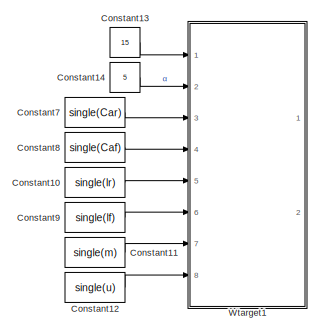
[diagram: root canvas - part 1/2, top right region]
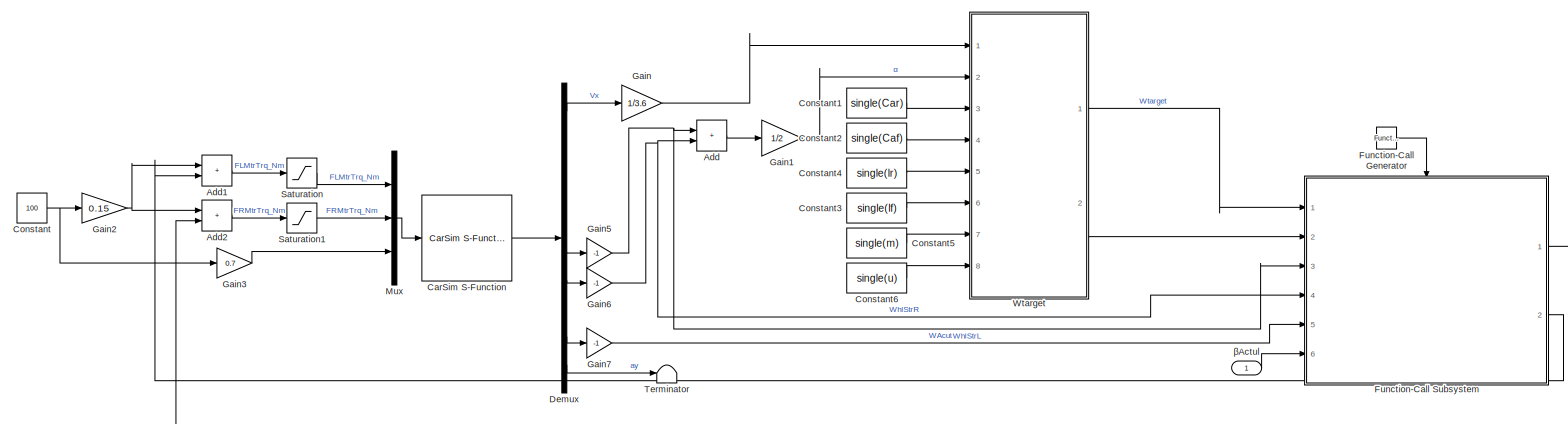
[diagram: root canvas - part 2/2, full width, middle band]
MODEL slx_0819341bcf43
KIND model
CONFIG AbsTol = auto
CONFIG EnableMultiTasking = off
CONFIG FixedStep = auto
CONFIG MaxStep = auto
CONFIG MinStep = auto
CONFIG RelTol = 1e-3
CONFIG SampleTimeConstraint = Unconstrained
CONFIG Solver = VariableStepAuto
CONFIG SolverName = VariableStepAuto
CONFIG StartTime = 0.0
CONFIG StopTime = 30
BLOCK [Sum] Add
  IconShape = rectangular
  Ports = [2, 1]
BLOCK [Sum] Add1
  IconShape = rectangular
  Ports = [2, 1]
BLOCK [Sum] Add2
  IconShape = rectangular
  Ports = [2, 1]
BLOCK [Reference] CarSim S-Function  REF=Solver_SF/CarSim S-Function
  Ports = [1, 1]
  Priority = 1
  SourceBlock = Solver_SF/CarSim S-Function
  SourceProductName = CarSim S-Function
  SourceType = Vehicle math model library
BLOCK [Constant] Constant
  Value = 100
BLOCK [Constant] Constant1
  Value = single(Car)
BLOCK [Constant] Constant10
  Commented = on
  Value = single(lr)
BLOCK [Constant] Constant11
  Commented = on
  Value = single(m)
BLOCK [Constant] Constant12
  Commented = on
  Value = single(u)
BLOCK [Constant] Constant13
  Commented = on
  Value = 15
BLOCK [Constant] Constant14
  Commented = on
  Value = 5
BLOCK [Constant] Constant2
  Value = single(Caf)
BLOCK [Constant] Constant3
  Value = single(lf)
BLOCK [Constant] Constant4
  Value = single(lr)
BLOCK [Constant] Constant5
  Value = single(m)
BLOCK [Constant] Constant6
  Value = single(u)
BLOCK [Constant] Constant7
  Commented = on
  Value = single(Car)
BLOCK [Constant] Constant8
  Commented = on
  Value = single(Caf)
BLOCK [Constant] Constant9
  Commented = on
  Value = single(lf)
BLOCK [Demux] Demux
  Outputs = 10
  Ports = [1, 10]
BLOCK [Reference] Function-Call Generator  REF=simulink/Ports &
Subsystems/Function-Call
Generator
  Ports = [0, 1]
  SourceBlock = simulink/Ports &\nSubsystems/Function-Call\nGenerator
  SourceType = Function-Call Generator
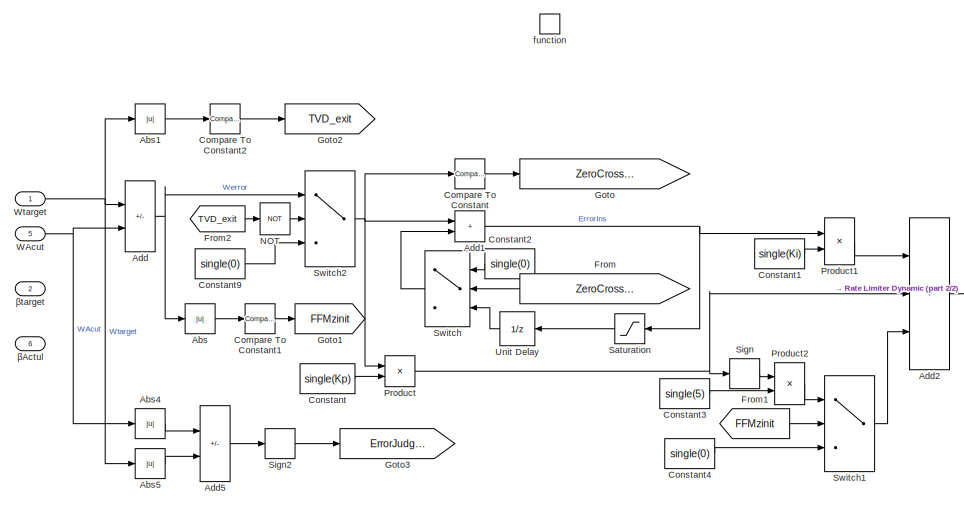
[diagram: Function-Call Subsystem - part 1/2, top left region]
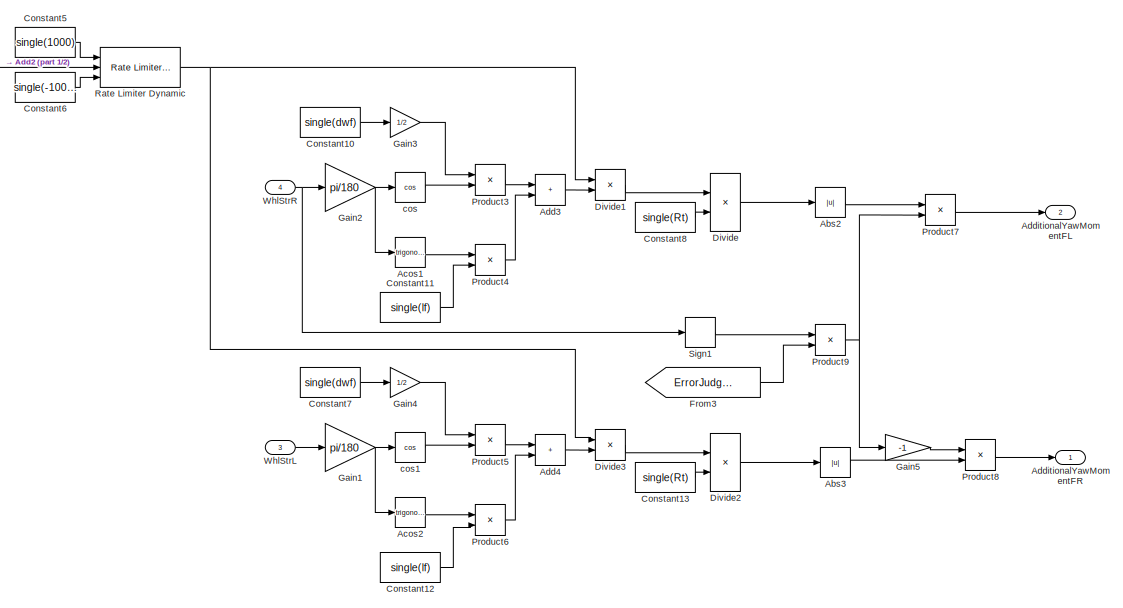
[diagram: Function-Call Subsystem - part 2/2, middle right region]
BLOCK [SubSystem] Function-Call Subsystem
  Ports = [6, 2, 0, 1]
  TreatAsAtomicUnit = on
BLOCK [Abs] Function-Call Subsystem/Abs
  SaturateOnIntegerOverflow = off
BLOCK [Abs] Function-Call Subsystem/Abs1
  SaturateOnIntegerOverflow = off
BLOCK [Abs] Function-Call Subsystem/Abs2
  SaturateOnIntegerOverflow = off
BLOCK [Abs] Function-Call Subsystem/Abs3
  SaturateOnIntegerOverflow = off
BLOCK [Abs] Function-Call Subsystem/Abs4
  SaturateOnIntegerOverflow = off
BLOCK [Abs] Function-Call Subsystem/Abs5
  SaturateOnIntegerOverflow = off
BLOCK [Trigonometry] Function-Call Subsystem/Acos1
  Ports = [1, 1]
BLOCK [Trigonometry] Function-Call Subsystem/Acos2
  Ports = [1, 1]
BLOCK [Sum] Function-Call Subsystem/Add
  IconShape = rectangular
  Inputs = +-
  Ports = [2, 1]
BLOCK [Sum] Function-Call Subsystem/Add1
  IconShape = rectangular
  Ports = [2, 1]
BLOCK [Sum] Function-Call Subsystem/Add2
  IconShape = rectangular
  Inputs = +++
  Ports = [3, 1]
BLOCK [Sum] Function-Call Subsystem/Add3
  IconShape = rectangular
  Ports = [2, 1]
BLOCK [Sum] Function-Call Subsystem/Add4
  IconShape = rectangular
  Ports = [2, 1]
BLOCK [Sum] Function-Call Subsystem/Add5
  IconShape = rectangular
  Inputs = -+
  Ports = [2, 1]
BLOCK [Outport] Function-Call Subsystem/AdditionalYawMomentFL
  Port = 2
BLOCK [Outport] Function-Call Subsystem/AdditionalYawMomentFR
BLOCK [Reference] Function-Call Subsystem/Compare To Constant  REF=simulink/Logic and Bit
Operations/Compare
To Constant
  Ports = [1, 1]
  SourceBlock = simulink/Logic and Bit\nOperations/Compare\nTo Constant
  SourceType = Compare To Constant
BLOCK [Reference] Function-Call Subsystem/Compare To Constant1  REF=simulink/Logic and Bit
Operations/Compare
To Constant
  Ports = [1, 1]
  SourceBlock = simulink/Logic and Bit\nOperations/Compare\nTo Constant
  SourceType = Compare To Constant
BLOCK [Reference] Function-Call Subsystem/Compare To Constant2  REF=simulink/Logic and Bit
Operations/Compare
To Constant
  Ports = [1, 1]
  SourceBlock = simulink/Logic and Bit\nOperations/Compare\nTo Constant
  SourceType = Compare To Constant
BLOCK [Constant] Function-Call Subsystem/Constant
  Value = single(Kp)
BLOCK [Constant] Function-Call Subsystem/Constant1
  Value = single(Ki)
BLOCK [Constant] Function-Call Subsystem/Constant10
  Value = single(dwf)
BLOCK [Constant] Function-Call Subsystem/Constant11
  Value = single(lf)
BLOCK [Constant] Function-Call Subsystem/Constant12
  Value = single(lf)
BLOCK [Constant] Function-Call Subsystem/Constant13
  Value = single(Rt)
BLOCK [Constant] Function-Call Subsystem/Constant2
  Value = single(0)
BLOCK [Constant] Function-Call Subsystem/Constant3
  Value = single(5)
BLOCK [Constant] Function-Call Subsystem/Constant4
  Value = single(0)
BLOCK [Constant] Function-Call Subsystem/Constant5
  Value = single(1000)
BLOCK [Constant] Function-Call Subsystem/Constant6
  Value = single(-1000)
BLOCK [Constant] Function-Call Subsystem/Constant7
  Value = single(dwf)
BLOCK [Constant] Function-Call Subsystem/Constant8
  Value = single(Rt)
BLOCK [Constant] Function-Call Subsystem/Constant9
  Value = single(0)
BLOCK [Product] Function-Call Subsystem/Divide
  Inputs = **
  Ports = [2, 1]
BLOCK [Product] Function-Call Subsystem/Divide1
  Inputs = */
  Ports = [2, 1]
BLOCK [Product] Function-Call Subsystem/Divide2
  Inputs = **
  Ports = [2, 1]
BLOCK [Product] Function-Call Subsystem/Divide3
  Inputs = */
  Ports = [2, 1]
BLOCK [From] Function-Call Subsystem/From
  GotoTag = ZeroCrossingDetection
BLOCK [From] Function-Call Subsystem/From1
  GotoTag = FFMzinit
BLOCK [From] Function-Call Subsystem/From2
  GotoTag = TVD_exit
BLOCK [From] Function-Call Subsystem/From3
  GotoTag = ErrorJudgment
BLOCK [Gain] Function-Call Subsystem/Gain1
  Gain = pi/180
BLOCK [Gain] Function-Call Subsystem/Gain2
  Gain = pi/180
BLOCK [Gain] Function-Call Subsystem/Gain3
  Gain = 1/2
BLOCK [Gain] Function-Call Subsystem/Gain4
  Gain = 1/2
BLOCK [Gain] Function-Call Subsystem/Gain5
  Gain = -1
BLOCK [Goto] Function-Call Subsystem/Goto
  GotoTag = ZeroCrossingDetection
BLOCK [Goto] Function-Call Subsystem/Goto1
  GotoTag = FFMzinit
BLOCK [Goto] Function-Call Subsystem/Goto2
  GotoTag = TVD_exit
BLOCK [Goto] Function-Call Subsystem/Goto3
  GotoTag = ErrorJudgment
BLOCK [Logic] Function-Call Subsystem/NOT
  AllPortsSameDT = off
  Operator = NOT
  OutDataTypeStr = boolean
  Ports = [1, 1]
BLOCK [Product] Function-Call Subsystem/Product
  Ports = [2, 1]
BLOCK [Product] Function-Call Subsystem/Product1
  Ports = [2, 1]
BLOCK [Product] Function-Call Subsystem/Product2
  Ports = [2, 1]
BLOCK [Product] Function-Call Subsystem/Product3
  Ports = [2, 1]
BLOCK [Product] Function-Call Subsystem/Product4
  Ports = [2, 1]
BLOCK [Product] Function-Call Subsystem/Product5
  Ports = [2, 1]
BLOCK [Product] Function-Call Subsystem/Product6
  Ports = [2, 1]
BLOCK [Product] Function-Call Subsystem/Product7
  Ports = [2, 1]
BLOCK [Product] Function-Call Subsystem/Product8
  Ports = [2, 1]
BLOCK [Product] Function-Call Subsystem/Product9
  Ports = [2, 1]
BLOCK [Reference] Function-Call Subsystem/Rate Limiter Dynamic  REF=simulink/Discontinuities/Rate Limiter
Dynamic
  Ports = [3, 1]
  SourceBlock = simulink/Discontinuities/Rate Limiter\nDynamic
  SourceType = Rate Limiter Dynamic
BLOCK [Saturate] Function-Call Subsystem/Saturation
  LowerLimit = -10
  UpperLimit = 10
BLOCK [Signum] Function-Call Subsystem/Sign
BLOCK [Signum] Function-Call Subsystem/Sign1
BLOCK [Signum] Function-Call Subsystem/Sign2
BLOCK [Switch] Function-Call Subsystem/Switch
  Criteria = u2 ~= 0
  InputSameDT = off
  SaturateOnIntegerOverflow = off
BLOCK [Switch] Function-Call Subsystem/Switch1
  Criteria = u2 ~= 0
  InputSameDT = off
  SaturateOnIntegerOverflow = off
BLOCK [Switch] Function-Call Subsystem/Switch2
  Criteria = u2 ~= 0
  InputSameDT = off
  SaturateOnIntegerOverflow = off
BLOCK [UnitDelay] Function-Call Subsystem/Unit Delay
  HasFrameUpgradeWarning = on
  SampleTime = -1
BLOCK [Inport] Function-Call Subsystem/WAcut
  Port = 5
BLOCK [Inport] Function-Call Subsystem/WhlStrL
  Port = 3
BLOCK [Inport] Function-Call Subsystem/WhlStrR
  Port = 4
BLOCK [Inport] Function-Call Subsystem/Wtarget
BLOCK [Trigonometry] Function-Call Subsystem/cos
  Operator = cos
  Ports = [1, 1]
BLOCK [Trigonometry] Function-Call Subsystem/cos1
  Operator = cos
  Ports = [1, 1]
BLOCK [TriggerPort] Function-Call Subsystem/function
  Ports = []
  StatesWhenEnabling = held
  TriggerType = function-call
  VariantControl = (inherit)
BLOCK [Inport] Function-Call Subsystem/βActul
  Port = 6
BLOCK [Inport] Function-Call Subsystem/βtarget
  Port = 2
BLOCK [Gain] Gain
  Gain = 1/3.6
BLOCK [Gain] Gain1
  Gain = 1/2
BLOCK [Gain] Gain2
  Gain = 0.15
BLOCK [Gain] Gain3
  Gain = 0.7
BLOCK [Gain] Gain5
  Gain = -1
BLOCK [Gain] Gain6
  Gain = -1
BLOCK [Gain] Gain7
  Gain = -1
BLOCK [Mux] Mux
  DisplayOption = bar
  Inputs = 3
  Ports = [3, 1]
BLOCK [Saturate] Saturation
  LowerLimit = 0
  UpperLimit = inf
BLOCK [Saturate] Saturation1
  LowerLimit = 0
  UpperLimit = inf
BLOCK [Terminator] Terminator
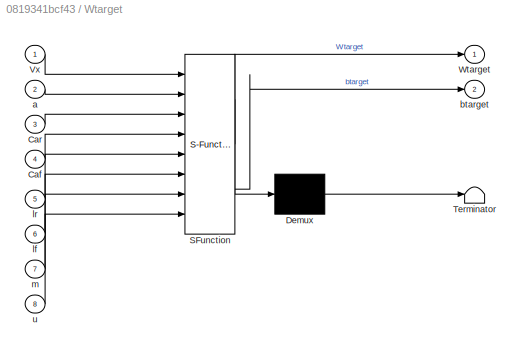
BLOCK [SubSystem] Wtarget
  ErrorFcn = Stateflow.Translate.translate
  PermitHierarchicalResolution = ExplicitOnly
  Ports = [8, 2]
  SFBlockType = MATLAB Function
  TreatAsAtomicUnit = on
BLOCK [Demux] Wtarget/ Demux 
  Outputs = 1
  Ports = [1, 1]
BLOCK [S-Function] Wtarget/ SFunction 
  EnableBusSupport = on
  FunctionName = sf_sfun
  PortCounts = [8 3]
  Ports = [8, 3]
  SFcnIsStateOwnerBlock = off
  SFunctionDeploymentMode = off
  Tag = Stateflow S-Function DTC2018B 2
BLOCK [Terminator] Wtarget/ Terminator 
BLOCK [Inport] Wtarget/Caf
  Port = 4
BLOCK [Inport] Wtarget/Car
  Port = 3
BLOCK [Inport] Wtarget/Vx
BLOCK [Outport] Wtarget/Wtarget
BLOCK [Inport] Wtarget/a
  Port = 2
BLOCK [Outport] Wtarget/btarget
  Port = 2
BLOCK [Inport] Wtarget/lf
  Port = 6
BLOCK [Inport] Wtarget/lr
  Port = 5
BLOCK [Inport] Wtarget/m
  Port = 7
BLOCK [Inport] Wtarget/u
  Port = 8
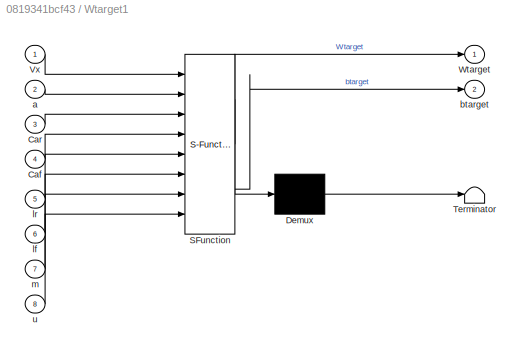
BLOCK [SubSystem] Wtarget1
  Commented = on
  ErrorFcn = Stateflow.Translate.translate
  PermitHierarchicalResolution = ExplicitOnly
  Ports = [8, 2]
  SFBlockType = MATLAB Function
  TreatAsAtomicUnit = on
BLOCK [Demux] Wtarget1/ Demux 
  Outputs = 1
  Ports = [1, 1]
BLOCK [S-Function] Wtarget1/ SFunction 
  EnableBusSupport = on
  FunctionName = sf_sfun
  PortCounts = [8 3]
  Ports = [8, 3]
  SFcnIsStateOwnerBlock = off
  SFunctionDeploymentMode = off
  Tag = Stateflow S-Function 1
BLOCK [Terminator] Wtarget1/ Terminator 
BLOCK [Inport] Wtarget1/Caf
  Port = 4
BLOCK [Inport] Wtarget1/Car
  Port = 3
BLOCK [Inport] Wtarget1/Vx
BLOCK [Outport] Wtarget1/Wtarget
BLOCK [Inport] Wtarget1/a
  Port = 2
BLOCK [Outport] Wtarget1/btarget
  Port = 2
BLOCK [Inport] Wtarget1/lf
  Port = 6
BLOCK [Inport] Wtarget1/lr
  Port = 5
BLOCK [Inport] Wtarget1/m
  Port = 7
BLOCK [Inport] Wtarget1/u
  Port = 8
BLOCK [Inport] βActul
LINE Add1:1 -> Saturation:1
LINE Add2:1 -> Saturation1:1
LINE Add:1 -> Gain1:1
LINE CarSim S-Function:1 -> Demux:1
LINE Constant10:1 -> Wtarget1:5
LINE Constant11:1 -> Wtarget1:7
LINE Constant12:1 -> Wtarget1:8
LINE Constant13:1 -> Wtarget1:1
LINE Constant14:1 -> Wtarget1:2
LINE Constant1:1 -> Wtarget:3
LINE Constant2:1 -> Wtarget:4
LINE Constant3:1 -> Wtarget:6
LINE Constant4:1 -> Wtarget:5
LINE Constant5:1 -> Wtarget:7
LINE Constant6:1 -> Wtarget:8
LINE Constant7:1 -> Wtarget1:3
LINE Constant8:1 -> Wtarget1:4
LINE Constant9:1 -> Wtarget1:6
NET Constant:1 -> Gain2:1, Gain3:1
LINE Demux:1 -> Gain:1
LINE Demux:10 -> Terminator:1
LINE Demux:6 -> Gain5:1
LINE Demux:7 -> Gain6:1
LINE Demux:9 -> Gain7:1
LINE Function-Call Generator:1 -> Function-Call Subsystem:trigger
LINE Function-Call Subsystem/Abs1:1 -> Function-Call Subsystem/Compare To Constant2:1
LINE Function-Call Subsystem/Abs2:1 -> Function-Call Subsystem/Product7:1
LINE Function-Call Subsystem/Abs3:1 -> Function-Call Subsystem/Product8:2
LINE Function-Call Subsystem/Abs4:1 -> Function-Call Subsystem/Add5:1
LINE Function-Call Subsystem/Abs5:1 -> Function-Call Subsystem/Add5:2
LINE Function-Call Subsystem/Abs:1 -> Function-Call Subsystem/Compare To Constant1:1
LINE Function-Call Subsystem/Acos1:1 -> Function-Call Subsystem/Product4:1
LINE Function-Call Subsystem/Acos2:1 -> Function-Call Subsystem/Product6:1
NET Function-Call Subsystem/Add1:1 -> Function-Call Subsystem/Product1:1, Function-Call Subsystem/Saturation:1
LINE Function-Call Subsystem/Add2:1 -> Function-Call Subsystem/Rate Limiter Dynamic:2
LINE Function-Call Subsystem/Add3:1 -> Function-Call Subsystem/Divide1:2
LINE Function-Call Subsystem/Add4:1 -> Function-Call Subsystem/Divide3:2
LINE Function-Call Subsystem/Add5:1 -> Function-Call Subsystem/Sign2:1
NET Function-Call Subsystem/Add:1 -> Function-Call Subsystem/Abs:1, Function-Call Subsystem/Switch2:1
LINE Function-Call Subsystem/Compare To Constant1:1 -> Function-Call Subsystem/Goto1:1
LINE Function-Call Subsystem/Compare To Constant2:1 -> Function-Call Subsystem/Goto2:1
LINE Function-Call Subsystem/Compare To Constant:1 -> Function-Call Subsystem/Goto:1
LINE Function-Call Subsystem/Constant10:1 -> Function-Call Subsystem/Gain3:1
LINE Function-Call Subsystem/Constant11:1 -> Function-Call Subsystem/Product4:2
LINE Function-Call Subsystem/Constant12:1 -> Function-Call Subsystem/Product6:2
LINE Function-Call Subsystem/Constant13:1 -> Function-Call Subsystem/Divide2:2
LINE Function-Call Subsystem/Constant1:1 -> Function-Call Subsystem/Product1:2
LINE Function-Call Subsystem/Constant2:1 -> Function-Call Subsystem/Switch:1
LINE Function-Call Subsystem/Constant3:1 -> Function-Call Subsystem/Product2:2
LINE Function-Call Subsystem/Constant4:1 -> Function-Call Subsystem/Switch1:3
LINE Function-Call Subsystem/Constant5:1 -> Function-Call Subsystem/Rate Limiter Dynamic:1
LINE Function-Call Subsystem/Constant6:1 -> Function-Call Subsystem/Rate Limiter Dynamic:3
LINE Function-Call Subsystem/Constant7:1 -> Function-Call Subsystem/Gain4:1
LINE Function-Call Subsystem/Constant8:1 -> Function-Call Subsystem/Divide:2
LINE Function-Call Subsystem/Constant9:1 -> Function-Call Subsystem/Switch2:3
LINE Function-Call Subsystem/Constant:1 -> Function-Call Subsystem/Product:2
LINE Function-Call Subsystem/Divide1:1 -> Function-Call Subsystem/Divide:1
LINE Function-Call Subsystem/Divide2:1 -> Function-Call Subsystem/Abs3:1
LINE Function-Call Subsystem/Divide3:1 -> Function-Call Subsystem/Divide2:1
LINE Function-Call Subsystem/Divide:1 -> Function-Call Subsystem/Abs2:1
LINE Function-Call Subsystem/From1:1 -> Function-Call Subsystem/Switch1:2
LINE Function-Call Subsystem/From2:1 -> Function-Call Subsystem/NOT:1
LINE Function-Call Subsystem/From3:1 -> Function-Call Subsystem/Product9:2
LINE Function-Call Subsystem/From:1 -> Function-Call Subsystem/Switch:2
NET Function-Call Subsystem/Gain1:1 -> Function-Call Subsystem/Acos2:1, Function-Call Subsystem/cos1:1
NET Function-Call Subsystem/Gain2:1 -> Function-Call Subsystem/Acos1:1, Function-Call Subsystem/cos:1
LINE Function-Call Subsystem/Gain3:1 -> Function-Call Subsystem/Product3:1
LINE Function-Call Subsystem/Gain4:1 -> Function-Call Subsystem/Product5:1
LINE Function-Call Subsystem/Gain5:1 -> Function-Call Subsystem/Product8:1
LINE Function-Call Subsystem/NOT:1 -> Function-Call Subsystem/Switch2:2
LINE Function-Call Subsystem/Product1:1 -> Function-Call Subsystem/Add2:1
LINE Function-Call Subsystem/Product2:1 -> Function-Call Subsystem/Switch1:1
LINE Function-Call Subsystem/Product3:1 -> Function-Call Subsystem/Add3:1
LINE Function-Call Subsystem/Product4:1 -> Function-Call Subsystem/Add3:2
LINE Function-Call Subsystem/Product5:1 -> Function-Call Subsystem/Add4:1
LINE Function-Call Subsystem/Product6:1 -> Function-Call Subsystem/Add4:2
LINE Function-Call Subsystem/Product7:1 -> Function-Call Subsystem/AdditionalYawMomentFL:1
LINE Function-Call Subsystem/Product8:1 -> Function-Call Subsystem/AdditionalYawMomentFR:1
NET Function-Call Subsystem/Product9:1 -> Function-Call Subsystem/Gain5:1, Function-Call Subsystem/Product7:2
NET Function-Call Subsystem/Product:1 -> Function-Call Subsystem/Add2:2, Function-Call Subsystem/Sign:1
NET Function-Call Subsystem/Rate Limiter Dynamic:1 -> Function-Call Subsystem/Divide1:1, Function-Call Subsystem/Divide3:1
LINE Function-Call Subsystem/Saturation:1 -> Function-Call Subsystem/Unit Delay:1
LINE Function-Call Subsystem/Sign1:1 -> Function-Call Subsystem/Product9:1
LINE Function-Call Subsystem/Sign2:1 -> Function-Call Subsystem/Goto3:1
LINE Function-Call Subsystem/Sign:1 -> Function-Call Subsystem/Product2:1
LINE Function-Call Subsystem/Switch1:1 -> Function-Call Subsystem/Add2:3
NET Function-Call Subsystem/Switch2:1 -> Function-Call Subsystem/Add1:1, Function-Call Subsystem/Compare To Constant:1, Function-Call Subsystem/Product:1
LINE Function-Call Subsystem/Switch:1 -> Function-Call Subsystem/Add1:2
LINE Function-Call Subsystem/Unit Delay:1 -> Function-Call Subsystem/Switch:3
NET Function-Call Subsystem/WAcut:1 -> Function-Call Subsystem/Abs4:1, Function-Call Subsystem/Add:2
LINE Function-Call Subsystem/WhlStrL:1 -> Function-Call Subsystem/Gain1:1
NET Function-Call Subsystem/WhlStrR:1 -> Function-Call Subsystem/Gain2:1, Function-Call Subsystem/Sign1:1
NET Function-Call Subsystem/Wtarget:1 -> Function-Call Subsystem/Abs1:1, Function-Call Subsystem/Abs5:1, Function-Call Subsystem/Add:1
LINE Function-Call Subsystem/cos1:1 -> Function-Call Subsystem/Product5:2
LINE Function-Call Subsystem/cos:1 -> Function-Call Subsystem/Product3:2
LINE Function-Call Subsystem:1 -> Add2:2
LINE Function-Call Subsystem:2 -> Add1:2
LINE Gain1:1 -> Wtarget:2
NET Gain2:1 -> Add1:1, Add2:1
LINE Gain3:1 -> Mux:3
NET Gain5:1 -> Add:1, Function-Call Subsystem:3
NET Gain6:1 -> Add:2, Function-Call Subsystem:4
LINE Gain7:1 -> Function-Call Subsystem:5
LINE Gain:1 -> Wtarget:1
LINE Mux:1 -> CarSim S-Function:1
LINE Saturation1:1 -> Mux:2
LINE Saturation:1 -> Mux:1
LINE Wtarget:1 -> Function-Call Subsystem:1
LINE Wtarget:2 -> Function-Call Subsystem:2
LINE βActul:1 -> Function-Call Subsystem:6
note: NET lines group one-source signal fan-out (src -> all destinations, sorted); 1:1 wires keep LINE
CHART Wtarget1 states=1 transitions=1
  STATE_LABEL 'eML_blk_kernel()'
  STATE_LABEL 'SCRIPT:\nfunction [Wtarget,btarget] = fcn(Vx,a,Car,Caf,lr,lf,m,u)\nWdes = Vx*a/(lf+lr+(m*Vx*Vx*(lr*Car-lf*Caf)/(Caf*Car*(lr+lf)*2)));\nWu = 0.85*u*9.8/Vx;\nif abs(Wdes)<=Wu\nWtarget = Wdes;\nelse\n    Wtarget = Wu*sign(Wdes);\nend\nbdes = (lr-lf*m*Vx*Vx/Car/(lf+lr)/2)*a/(lr+lf+m*Vx*Vx*(lr*Car-lf*Caf)/Car/Caf/(lf+lr)/2);\nbu = atan(0.02*u*9.8);\nif abs(bdes)<=bu\nbtarget = bdes;\nelse\n    btarget = bu*sign(bdes...<+6ch>'
CHART Wtarget states=1 transitions=1
  STATE_LABEL 'eML_blk_kernel()'
  STATE_LABEL 'SCRIPT:\nfunction [Wtarget,btarget] = fcn(Vx,a,Car,Caf,lr,lf,m,u)\nWdes = Vx*a/(lf+lr+(m*Vx*Vx*(lr*Car-lf*Caf)/Caf/Car/(lr+lf)/2));\nWu = 0.85*u*9.8/Vx;\n%if abs(Wdes)<=Wu\nWtarget = Wdes;\n%else\n %   Wtarget = Wu*sign(Wdes);\n%end\nbdes = (lr-lf*m*Vx*Vx/Car/(lf+lr)/2)*a/(lr+lf+m*Vx*Vx*(lr*Car-lf*Caf)/Car/Caf/(lf+lr)/2);\nbu = atan(0.02*u*9.8);\nif abs(bdes)<=bu\nbtarget = bdes;\nelse\n    btarget = bu*sign(bd...<+8ch>'
